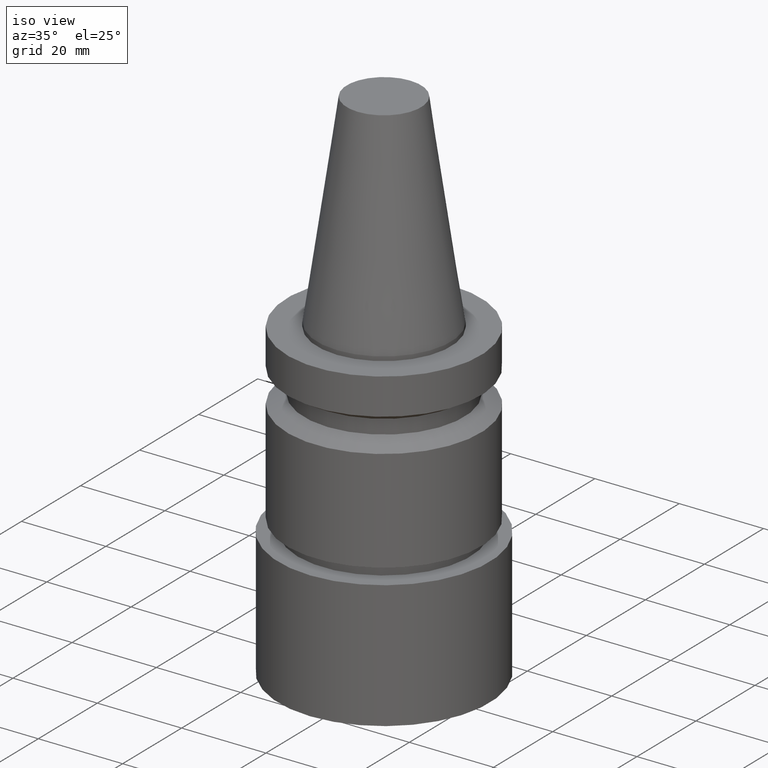
[diagram: clean part render]
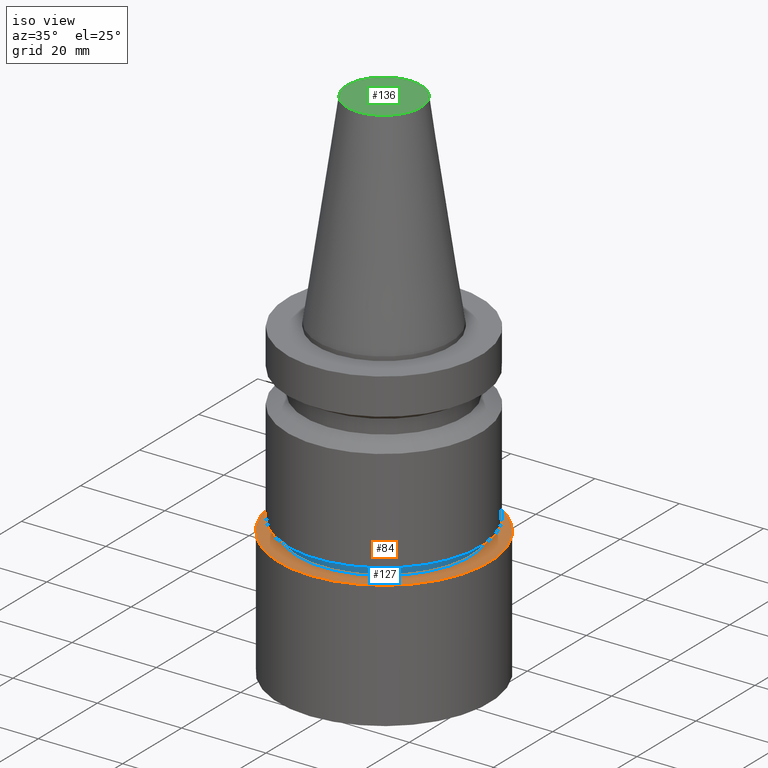
[diagram: same view with three faces highlighted in distinct colors, each labeled with its STEP entity id]
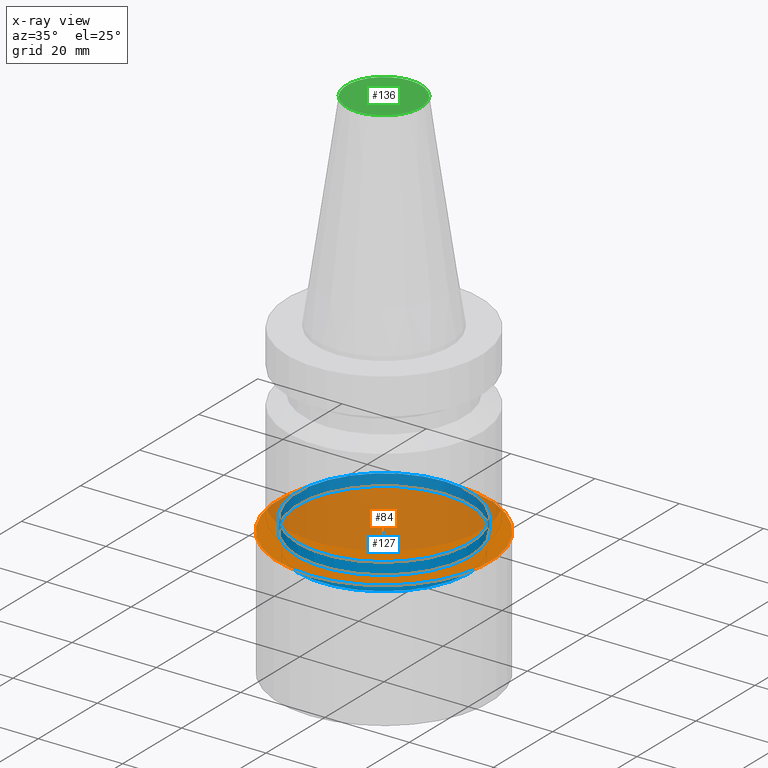
[diagram: x-ray of the same camera — body ghosted, the three highlighted faces saturated]
A machine part, iso view with three faces highlighted in distinct colors.
The next image is the same camera in x-ray (body ghosted, the three faces saturated) — at least one of them is partly hidden behind the body in this view.
Their STEP definitions:

[orange] entity #84 — the highlighted planar face has unit normal (-0, -0, 1).
#84=ADVANCED_FACE('Unnamed[1]',(#203),#204,.T.);
#105=EDGE_CURVE('Unnamed[1]',#236,#236,#237,.T.);
#203=FACE_OUTER_BOUND('',#361,.T.);
#204=PLANE('',#362);
#236=VERTEX_POINT('',#403);
#237=CIRCLE('',#404,25.0);
#361=EDGE_LOOP('',(#530));
#362=AXIS2_PLACEMENT_3D('',#531,#532,#533);
#403=CARTESIAN_POINT('',(2.74320883009007E-015,25.0,-44.8));
#404=AXIS2_PLACEMENT_3D('',#567,#568,#569);
#530=ORIENTED_EDGE('',*,*,#105,.F.);
#531=CARTESIAN_POINT('',(2.74320883009007E-015,12.5,-44.8));
#532=DIRECTION('',(-6.12323399573677E-017,-1.22464679914735E-016,1.0));
#533=DIRECTION('',(1.23259516440783E-032,-1.0,-1.22464679914735E-016));
#567=CARTESIAN_POINT('',(2.74320883009007E-015,5.48641766018014E-015,-44.8));
#568=DIRECTION('',(6.12323399573677E-017,1.22464679914735E-016,-1.0));
#569=DIRECTION('',(-1.23259516440783E-032,1.0,1.22464679914735E-016));

[blue] entity #127 — the highlighted cylindrical surface (bore or boss wall) has radius 20.5 mm, axis along (0, 0, -1).
#79=EDGE_CURVE('Unnamed[1]',#196,#196,#197,.T.);
#127=ADVANCED_FACE('Unnamed[1]',(#271,#272),#273,.T.);
#143=EDGE_CURVE('Unnamed[1]',#295,#295,#296,.T.);
#196=VERTEX_POINT('',#352);
#197=CIRCLE('',#353,20.5000000000012);
#271=FACE_BOUND('',#446,.T.);
#272=FACE_BOUND('',#447,.T.);
#273=CYLINDRICAL_SURFACE('',#448,20.4999999999961);
#295=VERTEX_POINT('',#475);
#296=CIRCLE('',#476,20.4999999999911);
#352=CARTESIAN_POINT('',(2.95210188229639E-015,20.5000000000012,-48.211482434801));
#353=AXIS2_PLACEMENT_3D('',#523,#524,#525);
#446=EDGE_LOOP('',(#607));
#447=EDGE_LOOP('',(#608));
#448=AXIS2_PLACEMENT_3D('',#609,#610,#611);
#475=CARTESIAN_POINT('',(2.57176792655278E-015,20.4999999999911,-42.0001575694044));
#476=AXIS2_PLACEMENT_3D('',#633,#634,#635);
#523=CARTESIAN_POINT('',(2.95210188229639E-015,5.90420376459279E-015,-48.211482434801));
#524=DIRECTION('',(6.12323399573677E-017,1.22464679914735E-016,-1.0));
#525=DIRECTION('',(-1.23259516440783E-032,1.0,1.22464679914735E-016));
#607=ORIENTED_EDGE('',*,*,#79,.F.);
#608=ORIENTED_EDGE('',*,*,#143,.T.);
#609=CARTESIAN_POINT('',(2.76193490442458E-015,5.52386980884917E-015,-45.1058200021027));
#610=DIRECTION('',(6.12323399573677E-017,1.22464679914735E-016,-1.0));
#611=DIRECTION('',(-1.23259516440783E-032,1.0,1.22464679914735E-016));
#633=CARTESIAN_POINT('',(2.57176792655278E-015,5.14353585310555E-015,-42.0001575694044));
#634=DIRECTION('',(6.12323399573677E-017,1.22464679914735E-016,-1.0));
#635=DIRECTION('',(-1.23259516440783E-032,1.0,1.22464679914735E-016));

[green] entity #136 — the highlighted planar face has unit normal (-0, -0, 1).
#136=ADVANCED_FACE('Unnamed[1]',(#286),#287,.T.);
#156=EDGE_CURVE('Unnamed[1]',#313,#313,#314,.T.);
#286=FACE_OUTER_BOUND('',#464,.T.);
#287=PLANE('',#465);
#313=VERTEX_POINT('',#497);
#314=CIRCLE('',#498,8.81650000198669);
#464=EDGE_LOOP('',(#625));
#465=AXIS2_PLACEMENT_3D('',#626,#627,#628);
#497=CARTESIAN_POINT('',(-2.96364525393659E-015,8.81650000198669,48.4));
#498=AXIS2_PLACEMENT_3D('',#651,#652,#653);
#625=ORIENTED_EDGE('',*,*,#156,.F.);
#626=CARTESIAN_POINT('',(-2.96364525393659E-015,4.40825000099334,48.4));
#627=DIRECTION('',(-6.12323399573677E-017,-1.22464679914735E-016,1.0));
#628=DIRECTION('',(1.23259516440783E-032,-1.0,-1.22464679914735E-016));
#651=CARTESIAN_POINT('',(-2.96364525393659E-015,-5.92729050787319E-015,48.4));
#652=DIRECTION('',(6.12323399573677E-017,1.22464679914735E-016,-1.0));
#653=DIRECTION('',(-1.23259516440783E-032,1.0,1.22464679914735E-016));